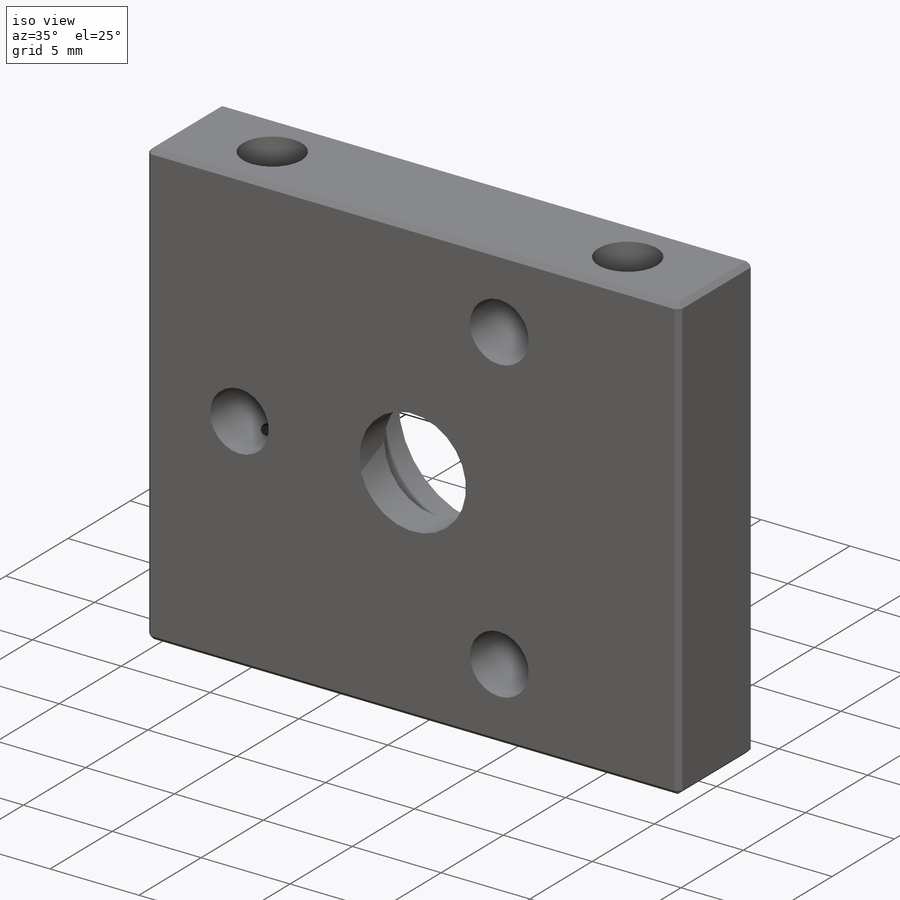
[diagram: iso view]
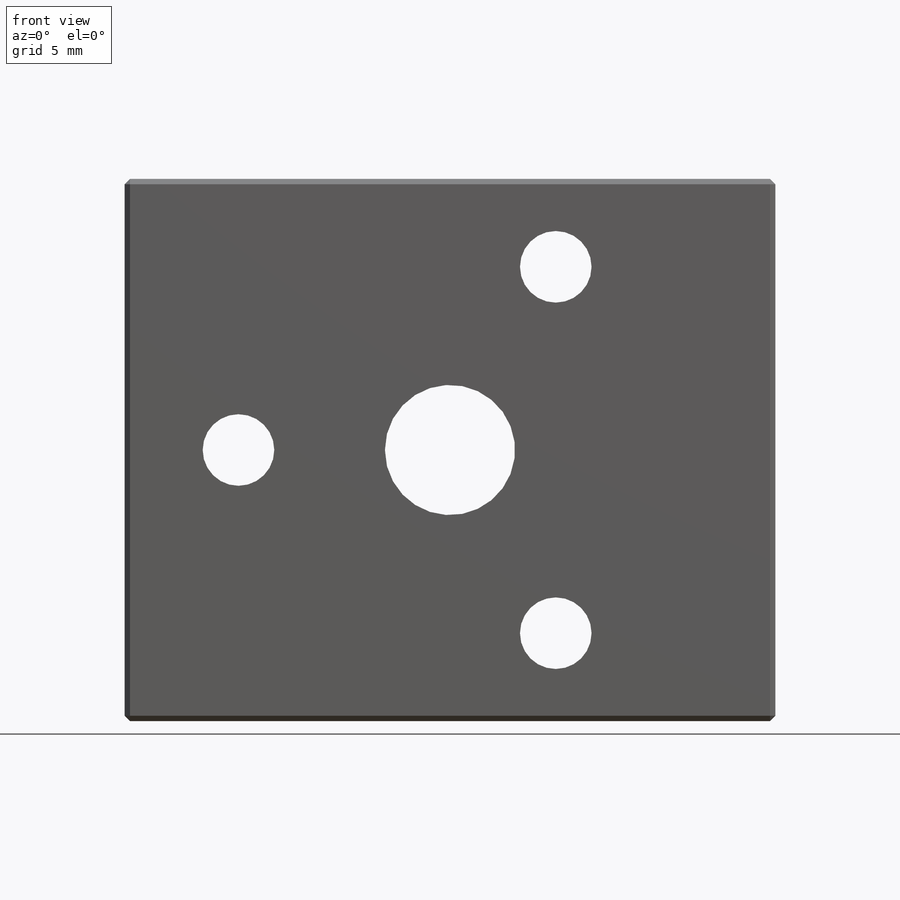
[diagram: front view]
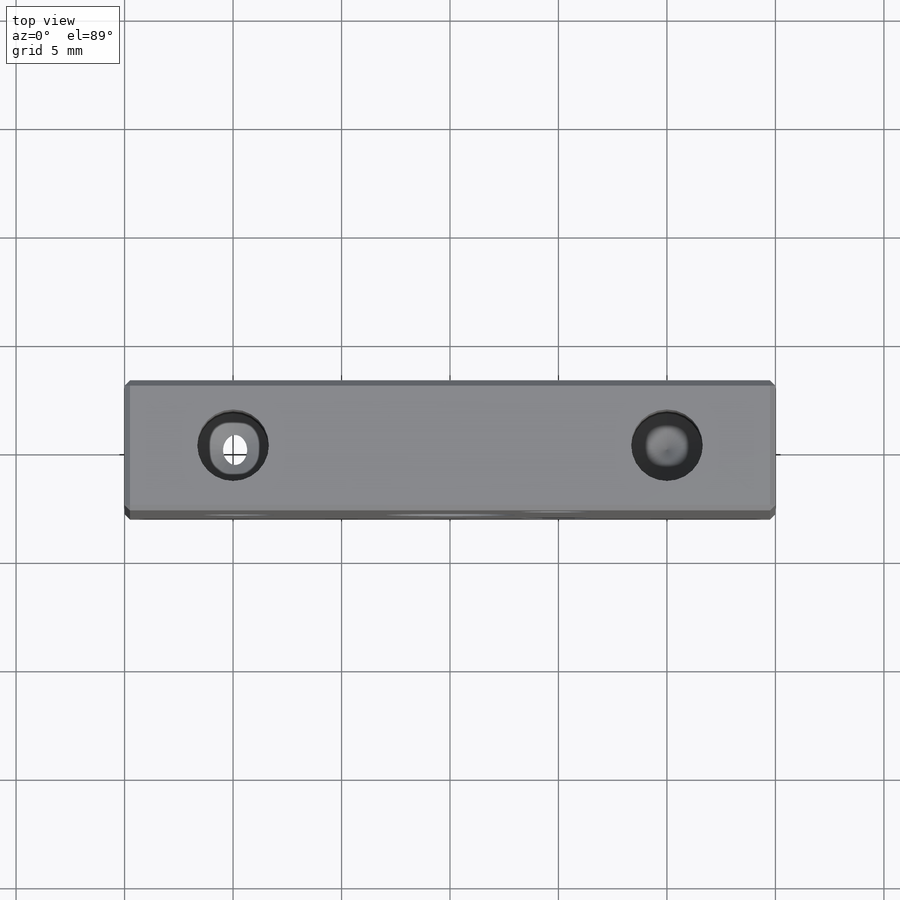
[diagram: top view]
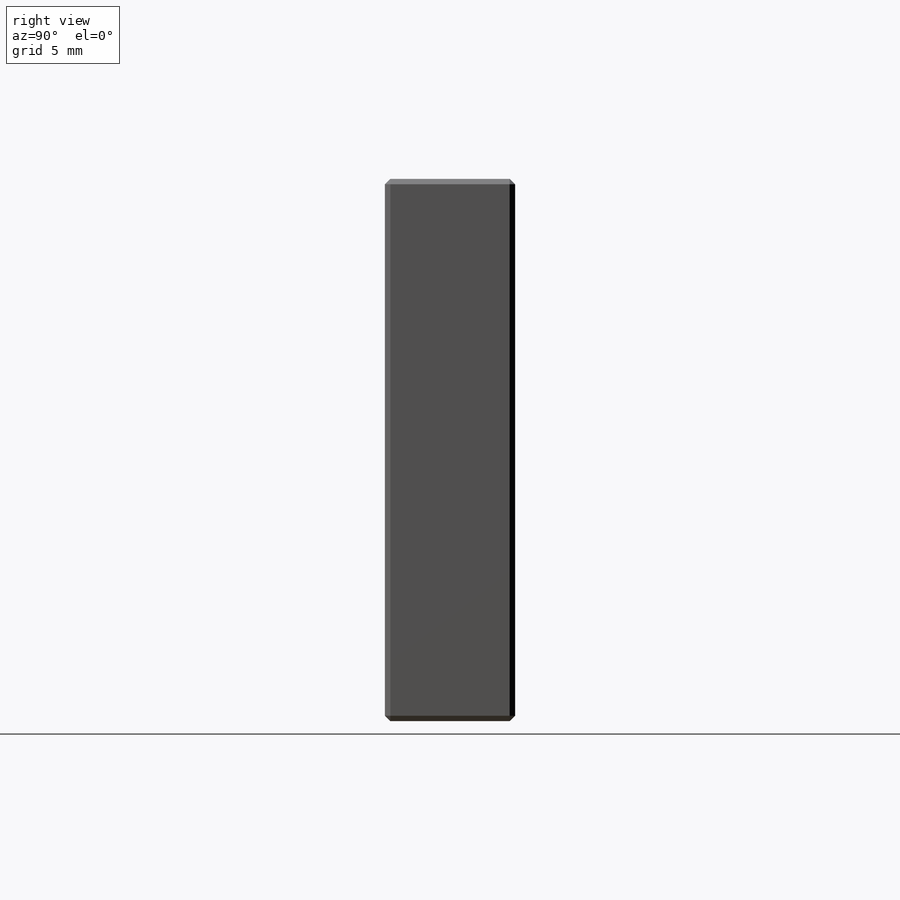
[diagram: right view]
SOLIDWORKS PART (.sldprt)
format: sldprt  version: not decoded by parser v0  size: 510,464 bytes
history: native  units: mm
features: sketch x7, thread x7, cut_extrude x2, hole x2, material x1, extrude x1, chamfer x1 (+15 scaffold rows collapsed)
feature tree (36):
  scaffold x15  (default folders/planes/origin — collapsed)
  material  "1060 Alloy"
  sketch  "Sketch1"  dims[D1=6.0mm D2=30.0mm]
  extrude  "Extrude1"  Depth=25mm
  sketch  "Sketch2"  dims[D1=10.0mm]
  cut_extrude  "Cut-Extrude1"  Depth=4mm
  sketch  "Sketch3"  dims[D1=6.0mm]
  cut_extrude  "Cut-Extrude2"  Depth=12mm
  hole  "M4x0.7 Tapped Hole1"  Diameter=3.3mm Depth=10.3mm
  sketch  "3DSketch1"  dims[D1=5.0mm D2=5.0mm]
  sketch  "Sketch5"  dims[hole-wizard template sketch: 50 standard entries collapsed; hole parameters above]
  thread  "Hole Thread1"  Diameter=8.2mm  [1 undecoded]
  thread  "Hole Thread2"  Diameter=8.2mm  [1 undecoded]
  thread  "Hole Thread3"  Diameter=8.2mm  [1 undecoded]
  thread  "Hole Thread4"  Diameter=8.2mm  [1 undecoded]
  chamfer  "Chamfer2"  Distance=0.25mm Angle=45deg
  hole  "M4x0.7 Tapped Hole2"  Diameter=3.3mm Depth=10.1mm
  sketch  "3DSketch2"  dims[c1.D1=9.75mm c1.D2=~10.124173mm c2.D2=120.0deg c2.D3=9.75mm c2.D4=9.75mm c2.D5=9.75mm c3.D5=120.0deg]
  sketch  "Sketch6"  dims[hole-wizard template sketch: 50 standard entries collapsed; hole parameters above]
  thread  "Hole Thread5"  Diameter=6mm  [1 undecoded]
  thread  "Hole Thread6"  Diameter=6mm  [1 undecoded]
  thread  "Hole Thread7"  Diameter=6mm  [1 undecoded]
decode coverage: 20 of 20 modeling features carry decoded parameters
note: ~ marks probable driven/reference dimensions
note: 7 parameter values undecoded
note: suppression state not decoded; provenance and decode notes live in map.json
